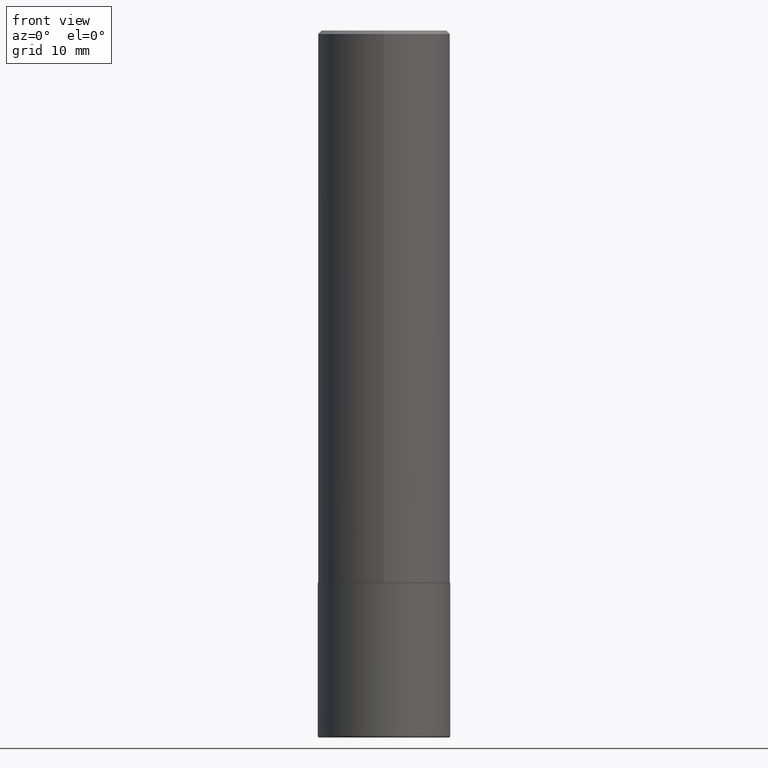
[diagram: clean part render]
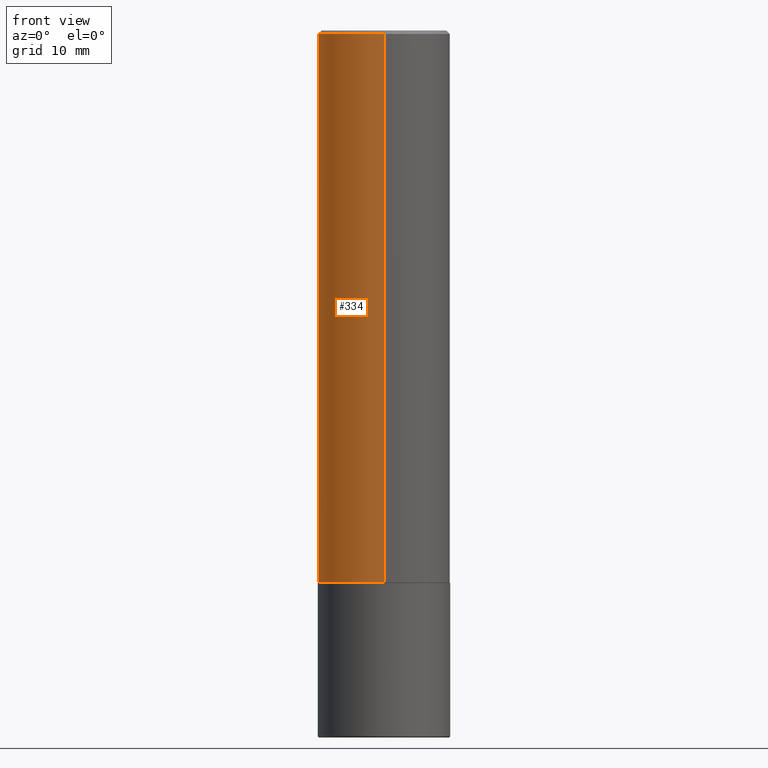
[diagram: same view with one face highlighted and labeled with its STEP entity id]
A machine part, front view. The second image highlights one B-rep face of the part: STEP entity #334.
In plain terms, the highlighted cylindrical surface (partial cylindrical patch) has radius 9.525 mm, axis along (-0, 0, 1).
Its self-contained STEP definition (entity closure, byte-faithful):
#26 = DIRECTION ( 'NONE',  ( -6.982962677686266711E-15, -1.000000000000000000, 3.490725905101792415E-15 ) ) ;
#35 = CARTESIAN_POINT ( 'NONE',  ( 0.000000000000000000, 0.000000000000000000, 0.000000000000000000 ) ) ;
#45 = VERTEX_POINT ( 'NONE', #364 ) ;
#49 = EDGE_CURVE ( 'NONE', #162, #103, #53, .T. ) ;
#53 = CIRCLE ( 'NONE', #144, 0.3750000000000003886 ) ;
#59 = CIRCLE ( 'NONE', #89, 0.3750000000000001110 ) ;
#60 = FACE_OUTER_BOUND ( 'NONE', #380, .T. ) ;
#63 = ORIENTED_EDGE ( 'NONE', *, *, #238, .T. ) ;
#72 = VECTOR ( 'NONE', #278, 39.37007874015748143 ) ;
#89 = AXIS2_PLACEMENT_3D ( 'NONE', #306, #204, #277 ) ;
#103 = VERTEX_POINT ( 'NONE', #202 ) ;
#114 = DIRECTION ( 'NONE',  ( -2.445996322747269804E-29, 3.490725905101792415E-15, 1.000000000000000000 ) ) ;
#116 = VECTOR ( 'NONE', #377, 39.37007874015748143 ) ;
#118 = LINE ( 'NONE', #237, #116 ) ;
#129 = ORIENTED_EDGE ( 'NONE', *, *, #233, .F. ) ;
#143 = CARTESIAN_POINT ( 'NONE',  ( 2.618611004132351200E-15, 0.3750000000000000555, -0.02000000000000139513 ) ) ;
#144 = AXIS2_PLACEMENT_3D ( 'NONE', #272, #114, #371 ) ;
#148 = LINE ( 'NONE', #346, #72 ) ;
#162 = VERTEX_POINT ( 'NONE', #360 ) ;
#191 = AXIS2_PLACEMENT_3D ( 'NONE', #35, #381, #26 ) ;
#202 = CARTESIAN_POINT ( 'NONE',  ( -2.618611004132276258E-15, -0.3750000000000113243, -3.123999999999999222 ) ) ;
#204 = DIRECTION ( 'NONE',  ( -2.445996322747269804E-29, 3.490725905101792415E-15, 1.000000000000000000 ) ) ;
#233 = EDGE_CURVE ( 'NONE', #373, #45, #59, .T. ) ;
#237 = CARTESIAN_POINT ( 'NONE',  ( 2.664535259100376880E-15, 0.3750000000000002220, -1.309022214413172994E-15 ) ) ;
#238 = EDGE_CURVE ( 'NONE', #103, #45, #148, .T. ) ;
#272 = CARTESIAN_POINT ( 'NONE',  ( 7.641292512262471991E-29, -1.090502772753799986E-14, -3.124000000000000554 ) ) ;
#277 = DIRECTION ( 'NONE',  ( -6.982962677686265922E-15, -1.000000000000000000, 3.494488891895535640E-15 ) ) ;
#278 = DIRECTION ( 'NONE',  ( -2.445996322747270084E-29, 3.490725905101792021E-15, 1.000000000000000000 ) ) ;
#282 = ORIENTED_EDGE ( 'NONE', *, *, #49, .T. ) ;
#306 = CARTESIAN_POINT ( 'NONE',  ( 4.891992645494561398E-31, -6.981451810203614264E-17, -0.02000000000000008715 ) ) ;
#314 = CYLINDRICAL_SURFACE ( 'NONE', #191, 0.3750000000000002220 ) ;
#334 = ADVANCED_FACE ( 'NONE', ( #60 ), #314, .T. ) ;
#346 = CARTESIAN_POINT ( 'NONE',  ( -2.618611004132351594E-15, -0.3750000000000002220, 1.309022214413172994E-15 ) ) ;
#355 = ORIENTED_EDGE ( 'NONE', *, *, #374, .F. ) ;
#360 = CARTESIAN_POINT ( 'NONE',  ( 2.664535259100415534E-15, 0.3749999999999894529, -3.124000000000001442 ) ) ;
#364 = CARTESIAN_POINT ( 'NONE',  ( -2.572686749164324336E-15, -0.3750000000000001665, -0.01999999999999877570 ) ) ;
#371 = DIRECTION ( 'NONE',  ( -6.982962677686265922E-15, -1.000000000000000000, 2.913971193241877611E-15 ) ) ;
#373 = VERTEX_POINT ( 'NONE', #143 ) ;
#374 = EDGE_CURVE ( 'NONE', #162, #373, #118, .T. ) ;
#377 = DIRECTION ( 'NONE',  ( -2.445996322747270084E-29, 3.490725905101792021E-15, 1.000000000000000000 ) ) ;
#380 = EDGE_LOOP ( 'NONE', ( #355, #282, #63, #129 ) ) ;
#381 = DIRECTION ( 'NONE',  ( -2.445996322747269804E-29, 3.490725905101792415E-15, 1.000000000000000000 ) ) ;